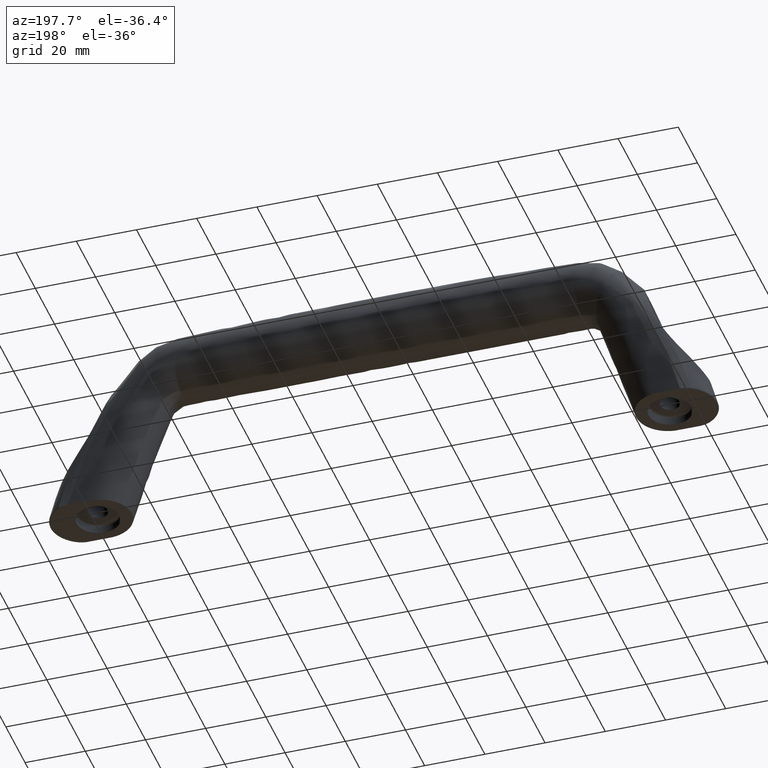
[diagram: clean part render]
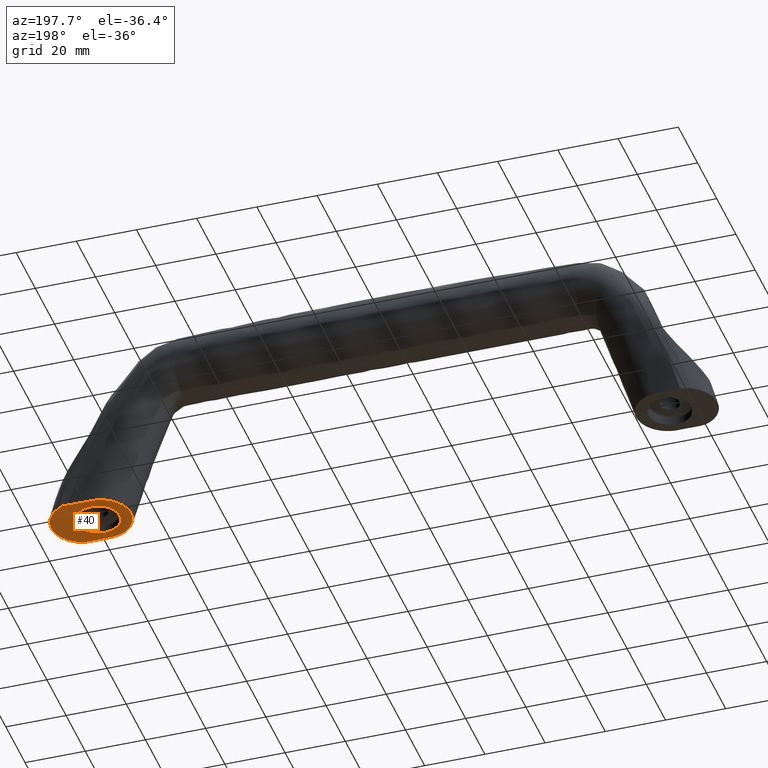
[diagram: same view with one face highlighted and labeled with its STEP entity id]
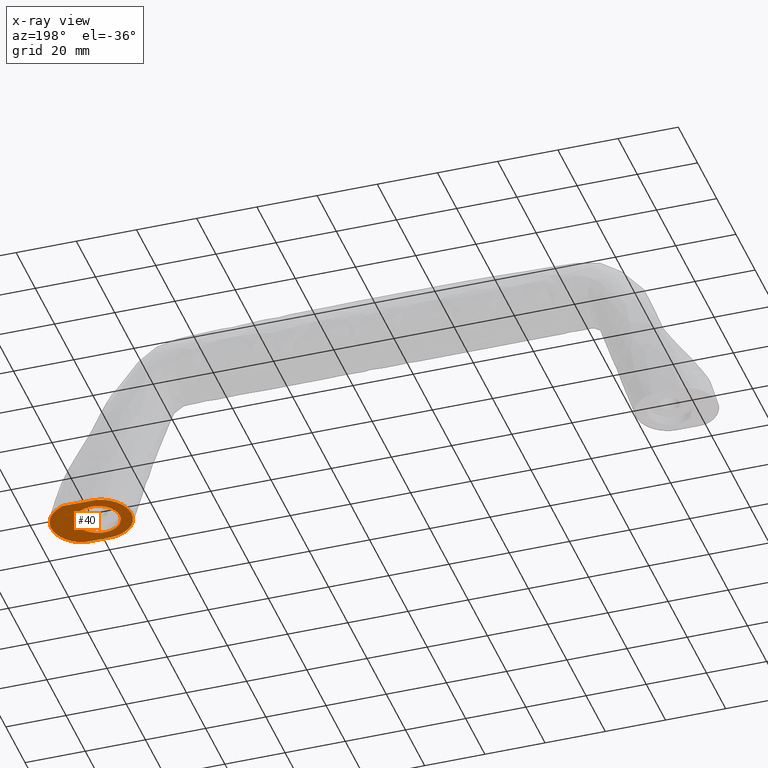
[diagram: x-ray of the same camera — body ghosted, the highlighted face saturated]
A machine part, auxiliary view. The second image highlights one B-rep face of the part: STEP entity #40.
The next image is the same camera in x-ray: the body ghosted, the highlighted face saturated — about 0% of this face is hidden behind the body in this view.
In plain terms, the highlighted planar face has unit normal (0, 0, -1).
Its self-contained STEP definition (entity closure, byte-faithful):
#40=ADVANCED_FACE('',(#89,#90),#88,.T.);
#88=PLANE('',#579);
#89=FACE_OUTER_BOUND('',#580,.T.);
#90=FACE_BOUND('',#581,.T.);
#576=CARTESIAN_POINT('',(-1.37285330000E+01,4.43624694549E+01,1.80000213500E+01));
#577=DIRECTION('',(0.00000000000E+00,0.00000000000E+00,-1.00000000000E+00));
#578=DIRECTION('',(1.00000000000E+00,0.00000000000E+00,0.00000000000E+00));
#579=AXIS2_PLACEMENT_3D('',#576,#577,#578);
#580=EDGE_LOOP('',(#4559,#4560,#4561));
#581=EDGE_LOOP('',(#4562,#4563));
#4559=ORIENTED_EDGE('',*,*,#4779,.F.);
#4560=ORIENTED_EDGE('',*,*,#4780,.F.);
#4561=ORIENTED_EDGE('',*,*,#4781,.F.);
#4562=ORIENTED_EDGE('',*,*,#4782,.T.);
#4563=ORIENTED_EDGE('',*,*,#4783,.T.);
#4779=EDGE_CURVE('',#4889,#4890,#4891,.T.);
#4780=EDGE_CURVE('',#4897,#4889,#4898,.T.);
#4781=EDGE_CURVE('',#4890,#4897,#4904,.T.);
#4782=EDGE_CURVE('',#4910,#4911,#4912,.T.);
#4783=EDGE_CURVE('',#4911,#4910,#4918,.T.);
#4889=VERTEX_POINT('',#5617);
#4890=VERTEX_POINT('',#5618);
#4891=CIRCLE('',#5622,7.00000067364E+00);
#4897=VERTEX_POINT('',#5623);
#4898=(BOUNDED_CURVE() B_SPLINE_CURVE(3,(#5624,#5625,#5626,#5627,#5628,#5629,#5630,#5631,#5632,#5633,#5634,#5635,#5636,#5637,#5638,#5639,#5640,#5641,#5642,#5643,#5644,#5645,#5646,#5647,#5648,#5649,#5650,#5651,#5652,#5653,#5654,#5655,#5656,#5657,#5658,#5659,#5660,#5661,#5662,#5663,#5664,#5665,#5666,#5667),.UNSPECIFIED.,.F.,.F.) B_SPLINE_CURVE_WITH_KNOTS((4,2,2,2,2,2,2,2,2,2,2,2,2,2,2,2,2,2,2,2,2,4),(-2.81926574402E+01,-2.64306163502E+01,-2.55495958052E+01,-2.46685752602E+01,-2.37875547151E+01,-2.29065341702E+01,-2.11444930802E+01,-1.93824519902E+01,-1.76204109001E+01,-1.58583698101E+01,-1.40963287201E+01,-1.23342876301E+01,-1.14532670850E+01,-1.05722465401E+01,-8.81020545006E+00,-7.92918490505E+00,-7.04816436005E+00,-5.28612327003E+00,-4.40510272503E+00,-3.52408218002E+00,-1.76204109001E+00,0.00000000000E+00),.UNSPECIFIED.) CURVE() GEOMETRIC_REPRESENTATION_ITEM() RATIONAL_B_SPLINE_CURVE((1.00000000000E+00,1.00000000000E+00,1.00000000000E+00,1.00000000000E+00,1.00000000000E+00,1.00000000000E+00,1.00000000000E+00,1.00000000000E+00,1.00000000000E+00,1.00000000000E+00,1.00000000000E+00,1.00000000000E+00,1.00000000000E+00,1.00000000000E+00,1.00000000000E+00,1.00000000000E+00,1.00000000000E+00,1.00000000000E+00,1.00000000000E+00,1.00000000000E+00,1.00000000000E+00,1.00000000000E+00,1.00000000000E+00,1.00000000000E+00,1.00000000000E+00,1.00000000000E+00,1.00000000000E+00,1.00000000000E+00,1.00000000000E+00,1.00000000000E+00,1.00000000000E+00,1.00000000000E+00,1.00000000000E+00,1.00000000000E+00,1.00000000000E+00,1.00000000000E+00,1.00000000000E+00,1.00000000000E+00,1.00000000000E+00,1.00000000000E+00,1.00000000000E+00,1.00000000000E+00,1.00000000000E+00,1.00000000000E+00)) REPRESENTATION_ITEM('') );
#4904=(BOUNDED_CURVE() B_SPLINE_CURVE(3,(#5668,#5669,#5670,#5671,#5672,#5673,#5674,#5675,#5676,#5677,#5678,#5679,#5680,#5681,#5682,#5683,#5684,#5685,#5686,#5687,#5688,#5689,#5690,#5691,#5692,#5693,#5694,#5695,#5696,#5697,#5698,#5699,#5700,#5701,#5702,#5703,#5704,#5705,#5706,#5707,#5708,#5709,#5710,#5711,#5712,#5713,#5714,#5715,#5716,#5717,#5718,#5719,#5720,#5721,#5722,#5723,#5724,#5725,#5726,#5727),.UNSPECIFIED.,.F.,.F.) B_SPLINE_CURVE_WITH_KNOTS((4,1,1,2,2,2,2,2,2,2,2,2,2,2,2,2,2,2,2,2,2,2,2,2,2,2,2,2,2,2,4),(-4.89849329612E+01,-4.28618163411E+01,-4.13310371860E+01,-4.05656476085E+01,-3.98002580310E+01,-3.82694788759E+01,-3.67386997209E+01,-3.52079205658E+01,-3.36771414108E+01,-3.21463622557E+01,-3.13809726782E+01,-3.06155831008E+01,-2.90848039457E+01,-2.75540247907E+01,-2.60232456356E+01,-2.52578560581E+01,-2.44924664806E+01,-2.29616873255E+01,-2.14309081705E+01,-1.83693498605E+01,-1.76039602830E+01,-1.68385707054E+01,-1.53077915504E+01,-1.37770123953E+01,-1.22462332403E+01,-1.14808436628E+01,-1.07154540852E+01,-9.18467493023E+00,-7.65389577519E+00,-6.12311662015E+00,0.00000000000E+00),.UNSPECIFIED.) CURVE() GEOMETRIC_REPRESENTATION_ITEM() RATIONAL_B_SPLINE_CURVE((1.00000000000E+00,1.00000000000E+00,1.00000000000E+00,1.00000000000E+00,1.00000000000E+00,1.00000000000E+00,1.00000000000E+00,1.00000000000E+00,1.00000000000E+00,1.00000000000E+00,1.00000000000E+00,1.00000000000E+00,1.00000000000E+00,1.00000000000E+00,1.00000000000E+00,1.00000000000E+00,1.00000000000E+00,1.00000000000E+00,1.00000000000E+00,1.00000000000E+00,1.00000000000E+00,1.00000000000E+00,1.00000000000E+00,1.00000000000E+00,1.00000000000E+00,1.00000000000E+00,1.00000000000E+00,1.00000000000E+00,1.00000000000E+00,1.00000000000E+00,1.00000000000E+00,1.00000000000E+00,1.00000000000E+00,1.00000000000E+00,1.00000000000E+00,1.00000000000E+00,1.00000000000E+00,1.00000000000E+00,1.00000000000E+00,1.00000000000E+00,1.00000000000E+00,1.00000000000E+00,1.00000000000E+00,1.00000000000E+00,1.00000000000E+00,1.00000000000E+00,1.00000000000E+00,1.00000000000E+00,1.00000000000E+00,1.00000000000E+00,1.00000000000E+00,1.00000000000E+00,1.00000000000E+00,1.00000000000E+00,1.00000000000E+00,1.00000000000E+00,1.00000000000E+00,1.00000000000E+00,1.00000000000E+00,1.00000000000E+00)) REPRESENTATION_ITEM('') );
#4910=VERTEX_POINT('',#5728);
#4911=VERTEX_POINT('',#5729);
#4912=CIRCLE('',#5733,7.20000000000E+00);
#4918=CIRCLE('',#5737,7.20000000000E+00);
#5617=CARTESIAN_POINT('',(8.46937622287E+00,4.22820551319E+01,1.80000213500E+01));
#5618=CARTESIAN_POINT('',(8.39799748287E+00,4.22998956351E+01,1.80000213500E+01));
#5619=CARTESIAN_POINT('',(6.73633521603E+00,3.54999774046E+01,1.80000213500E+01));
#5620=DIRECTION('',(0.00000000000E+00,-0.00000000000E+00,1.00000000000E+00));
#5621=DIRECTION('',(-2.47577262865E-01,-9.68868153524E-01,-0.00000000000E+00));
#5622=AXIS2_PLACEMENT_3D('',#5619,#5620,#5621);
#5623=CARTESIAN_POINT('',(6.68372752942E+00,2.17000332746E+01,1.80000213500E+01));
#5624=CARTESIAN_POINT('',(6.68372752942E+00,2.17000332746E+01,1.80000213500E+01));
#5625=CARTESIAN_POINT('',(7.27978483325E+00,2.17000364495E+01,1.80000213500E+01));
#5626=CARTESIAN_POINT('',(7.86270556747E+00,2.17771628533E+01,1.80000213500E+01));
#5627=CARTESIAN_POINT('',(8.71797352864E+00,2.20050634185E+01,1.80000213500E+01));
#5628=CARTESIAN_POINT('',(9.00180266633E+00,2.21009407842E+01,1.80000213500E+01));
#5629=CARTESIAN_POINT('',(9.54823677704E+00,2.23264063981E+01,1.80000213500E+01));
#5630=CARTESIAN_POINT('',(9.81118564701E+00,2.24571879248E+01,1.80000213500E+01));
#5631=CARTESIAN_POINT('',(1.03215058055E+01,2.27461321943E+01,1.80000213500E+01));
#5632=CARTESIAN_POINT('',(1.05707701076E+01,2.29009675263E+01,1.80000213500E+01));
#5633=CARTESIAN_POINT('',(1.10573951574E+01,2.32315614506E+01,1.80000213500E+01));
#5634=CARTESIAN_POINT('',(1.12956400995E+01,2.34080522563E+01,1.80000213500E+01));
#5635=CARTESIAN_POINT('',(1.19852888371E+01,2.39643300746E+01,1.80000213500E+01));
#5636=CARTESIAN_POINT('',(1.24091729569E+01,2.43680821428E+01,1.80000213500E+01));
#5637=CARTESIAN_POINT('',(1.31875531768E+01,2.52392086450E+01,1.80000213500E+01));
#5638=CARTESIAN_POINT('',(1.35427889402E+01,2.57077422337E+01,1.80000213500E+01));
#5639=CARTESIAN_POINT('',(1.41775474878E+01,2.67066193655E+01,1.80000213500E+01));
#5640=CARTESIAN_POINT('',(1.44499433967E+01,2.72253275300E+01,1.80000213500E+01));
#5641=CARTESIAN_POINT('',(1.49082320204E+01,2.82997993755E+01,1.80000213500E+01));
#5642=CARTESIAN_POINT('',(1.50941256114E+01,2.88555626811E+01,1.80000213500E+01));
#5643=CARTESIAN_POINT('',(1.53758112444E+01,3.00056862424E+01,1.80000213500E+01));
#5644=CARTESIAN_POINT('',(1.54679437986E+01,3.05856525665E+01,1.80000213500E+01));
#5645=CARTESIAN_POINT('',(1.55579277247E+01,3.17503598227E+01,1.80000213500E+01));
#5646=CARTESIAN_POINT('',(1.55559655186E+01,3.23358815783E+01,1.80000213500E+01));
#5647=CARTESIAN_POINT('',(1.54800710695E+01,3.32190864265E+01,1.80000213500E+01));
#5648=CARTESIAN_POINT('',(1.54425733052E+01,3.35128641368E+01,1.80000213500E+01));
#5649=CARTESIAN_POINT('',(1.53445975805E+01,3.40917646115E+01,1.80000213500E+01));
#5650=CARTESIAN_POINT('',(1.52840333713E+01,3.43780110632E+01,1.80000213500E+01));
#5651=CARTESIAN_POINT('',(1.50681310769E+01,3.52272827991E+01,1.80000213500E+01));
#5652=CARTESIAN_POINT('',(1.48788137329E+01,3.57809042304E+01,1.80000213500E+01));
#5653=CARTESIAN_POINT('',(1.45247220188E+01,3.65919316656E+01,1.80000213500E+01));
#5654=CARTESIAN_POINT('',(1.43948239967E+01,3.68589328921E+01,1.80000213500E+01));
#5655=CARTESIAN_POINT('',(1.41162727665E+01,3.73766066595E+01,1.80000213500E+01));
#5656=CARTESIAN_POINT('',(1.39670971282E+01,3.76285628756E+01,1.80000213500E+01));
#5657=CARTESIAN_POINT('',(1.34903957653E+01,3.83641548364E+01,1.80000213500E+01));
#5658=CARTESIAN_POINT('',(1.31338895768E+01,3.88276487154E+01,1.80000213500E+01));
#5659=CARTESIAN_POINT('',(1.25396631322E+01,3.94815589466E+01,1.80000213500E+01));
#5660=CARTESIAN_POINT('',(1.23308452215E+01,3.96931967210E+01,1.80000213500E+01));
#5661=CARTESIAN_POINT('',(1.19011287765E+01,4.00944682503E+01,1.80000213500E+01));
#5662=CARTESIAN_POINT('',(1.16794399757E+01,4.02850885376E+01,1.80000213500E+01));
#5663=CARTESIAN_POINT('',(1.09944358638E+01,4.08277153189E+01,1.80000213500E+01));
#5664=CARTESIAN_POINT('',(1.05113097329E+01,4.11506737866E+01,1.80000213500E+01));
#5665=CARTESIAN_POINT('',(9.49189847154E+00,4.17186452341E+01,1.80000213500E+01));
#5666=CARTESIAN_POINT('',(8.98013092223E+00,4.19996076269E+01,1.80000213500E+01));
#5667=CARTESIAN_POINT('',(8.46937622287E+00,4.22820551319E+01,1.80000213500E+01));
#5668=CARTESIAN_POINT('',(8.39799748287E+00,4.22998956351E+01,1.80000213500E+01));
#5669=CARTESIAN_POINT('',(6.33937154896E+00,4.22999263846E+01,1.80000213500E+01));
#5670=CARTESIAN_POINT('',(3.76608908661E+00,4.22999728147E+01,1.80000213500E+01));
#5671=CARTESIAN_POINT('',(9.35478630875E-01,4.22999789380E+01,1.80000213500E+01));
#5672=CARTESIAN_POINT('',(1.63493979127E-01,4.22999774081E+01,1.80000213500E+01));
#5673=CARTESIAN_POINT('',(-3.51162450488E-01,4.22999755202E+01,1.80000213500E+01));
#5674=CARTESIAN_POINT('',(-6.08502741093E-01,4.23021213669E+01,1.80000213500E+01));
#5675=CARTESIAN_POINT('',(-1.38044139597E+00,4.22939426824E+01,1.80000213500E+01));
#5676=CARTESIAN_POINT('',(-1.89825762252E+00,4.22493645079E+01,1.80000213500E+01));
#5677=CARTESIAN_POINT('',(-2.91147885664E+00,4.20850717168E+01,1.80000213500E+01));
#5678=CARTESIAN_POINT('',(-3.40767509440E+00,4.19659584813E+01,1.80000213500E+01));
#5679=CARTESIAN_POINT('',(-4.37960310486E+00,4.16550914251E+01,1.80000213500E+01));
#5680=CARTESIAN_POINT('',(-4.85743705918E+00,4.14622887401E+01,1.80000213500E+01));
#5681=CARTESIAN_POINT('',(-5.78242573901E+00,4.10050180233E+01,1.80000213500E+01));
#5682=CARTESIAN_POINT('',(-6.22250900091E+00,4.07444552020E+01,1.80000213500E+01));
#5683=CARTESIAN_POINT('',(-7.05940543118E+00,4.01616857460E+01,1.80000213500E+01));
#5684=CARTESIAN_POINT('',(-7.45621773420E+00,3.98394778786E+01,1.80000213500E+01));
#5685=CARTESIAN_POINT('',(-8.01793759701E+00,3.93084430253E+01,1.80000213500E+01));
#5686=CARTESIAN_POINT('',(-8.19938896186E+00,3.91234698395E+01,1.80000213500E+01));
#5687=CARTESIAN_POINT('',(-8.54496447628E+00,3.87437700132E+01,1.80000213500E+01));
#5688=CARTESIAN_POINT('',(-8.70990556445E+00,3.85483025092E+01,1.80000213500E+01));
#5689=CARTESIAN_POINT('',(-9.18160722269E+00,3.79453467664E+01,1.80000213500E+01));
#5690=CARTESIAN_POINT('',(-9.46537324361E+00,3.75213962596E+01,1.80000213500E+01));
#5691=CARTESIAN_POINT('',(-9.97062776068E+00,3.66289094924E+01,1.80000213500E+01));
#5692=CARTESIAN_POINT('',(-1.01922405269E+01,3.61582408250E+01,1.80000213500E+01));
#5693=CARTESIAN_POINT('',(-1.05577777130E+01,3.52025698776E+01,1.80000213500E+01));
#5694=CARTESIAN_POINT('',(-1.07040417213E+01,3.47140823093E+01,1.80000213500E+01));
#5695=CARTESIAN_POINT('',(-1.08688577593E+01,3.39654244353E+01,1.80000213500E+01));
#5696=CARTESIAN_POINT('',(-1.09146627711E+01,3.37132065923E+01,1.80000213500E+01));
#5697=CARTESIAN_POINT('',(-1.09875711604E+01,3.32033137402E+01,1.80000213500E+01));
#5698=CARTESIAN_POINT('',(-1.10145833175E+01,3.29454755303E+01,1.80000213500E+01));
#5699=CARTESIAN_POINT('',(-1.10661274796E+01,3.21767679779E+01,1.80000213500E+01));
#5700=CARTESIAN_POINT('',(-1.10620715408E+01,3.16663511653E+01,1.80000213500E+01));
#5701=CARTESIAN_POINT('',(-1.09786875846E+01,3.06495435927E+01,1.80000213500E+01));
#5702=CARTESIAN_POINT('',(-1.08990283140E+01,3.01417305963E+01,1.80000213500E+01));
#5703=CARTESIAN_POINT('',(-1.05439555341E+01,2.86335733015E+01,1.80000213500E+01));
#5704=CARTESIAN_POINT('',(-1.01649639973E+01,2.76867419565E+01,1.80000213500E+01));
#5705=CARTESIAN_POINT('',(-9.51501824475E+00,2.65757861548E+01,1.80000213500E+01));
#5706=CARTESIAN_POINT('',(-9.37573048409E+00,2.63570182214E+01,1.80000213500E+01));
#5707=CARTESIAN_POINT('',(-9.08372223770E+00,2.59342301764E+01,1.80000213500E+01));
#5708=CARTESIAN_POINT('',(-8.93049780892E+00,2.57292723415E+01,1.80000213500E+01));
#5709=CARTESIAN_POINT('',(-8.44957799402E+00,2.51333380132E+01,1.80000213500E+01));
#5710=CARTESIAN_POINT('',(-8.10075225819E+00,2.47611971344E+01,1.80000213500E+01));
#5711=CARTESIAN_POINT('',(-7.34602822420E+00,2.40677899153E+01,1.80000213500E+01));
#5712=CARTESIAN_POINT('',(-6.93747293130E+00,2.37454019582E+01,1.80000213500E+01));
#5713=CARTESIAN_POINT('',(-6.08885382501E+00,2.31732318750E+01,1.80000213500E+01));
#5714=CARTESIAN_POINT('',(-5.64620514936E+00,2.29205366233E+01,1.80000213500E+01));
#5715=CARTESIAN_POINT('',(-4.95492596166E+00,2.25912097241E+01,1.80000213500E+01));
#5716=CARTESIAN_POINT('',(-4.71992985499E+00,2.24897541011E+01,1.80000213500E+01));
#5717=CARTESIAN_POINT('',(-4.24060132831E+00,2.23038413532E+01,1.80000213500E+01));
#5718=CARTESIAN_POINT('',(-3.99507781902E+00,2.22190994550E+01,1.80000213500E+01));
#5719=CARTESIAN_POINT('',(-3.25971564191E+00,2.19956907894E+01,1.80000213500E+01));
#5720=CARTESIAN_POINT('',(-2.76745382852E+00,2.18858593992E+01,1.80000213500E+01));
#5721=CARTESIAN_POINT('',(-1.77918460950E+00,2.17386992569E+01,1.80000213500E+01));
#5722=CARTESIAN_POINT('',(-1.28317542058E+00,2.17014050234E+01,1.80000213500E+01));
#5723=CARTESIAN_POINT('',(-2.87446513494E-01,2.16986404871E+01,1.80000213500E+01));
#5724=CARTESIAN_POINT('',(2.10558459874E-01,2.16999782316E+01,1.80000213500E+01));
#5725=CARTESIAN_POINT('',(2.70023773600E+00,2.16999774274E+01,1.80000213500E+01));
#5726=CARTESIAN_POINT('',(4.69198234199E+00,2.16999997237E+01,1.80000213500E+01));
#5727=CARTESIAN_POINT('',(6.68372752942E+00,2.17000332746E+01,1.80000213500E+01));
#5728=CARTESIAN_POINT('',(7.20000000000E+00,3.19999780572E+01,1.80000213500E+01));
#5729=CARTESIAN_POINT('',(-7.20000000000E+00,3.19999780572E+01,1.80000213500E+01));
#5730=CARTESIAN_POINT('',(-2.51214793389E-15,3.19999780572E+01,1.80000213500E+01));
#5731=DIRECTION('',(0.00000000000E+00,0.00000000000E+00,1.00000000000E+00));
#5732=DIRECTION('',(1.00000000000E+00,-0.00000000000E+00,-0.00000000000E+00));
#5733=AXIS2_PLACEMENT_3D('',#5730,#5731,#5732);
#5734=CARTESIAN_POINT('',(-2.51214793389E-15,3.19999780572E+01,1.80000213500E+01));
#5735=DIRECTION('',(0.00000000000E+00,0.00000000000E+00,1.00000000000E+00));
#5736=DIRECTION('',(1.00000000000E+00,-0.00000000000E+00,-0.00000000000E+00));
#5737=AXIS2_PLACEMENT_3D('',#5734,#5735,#5736);